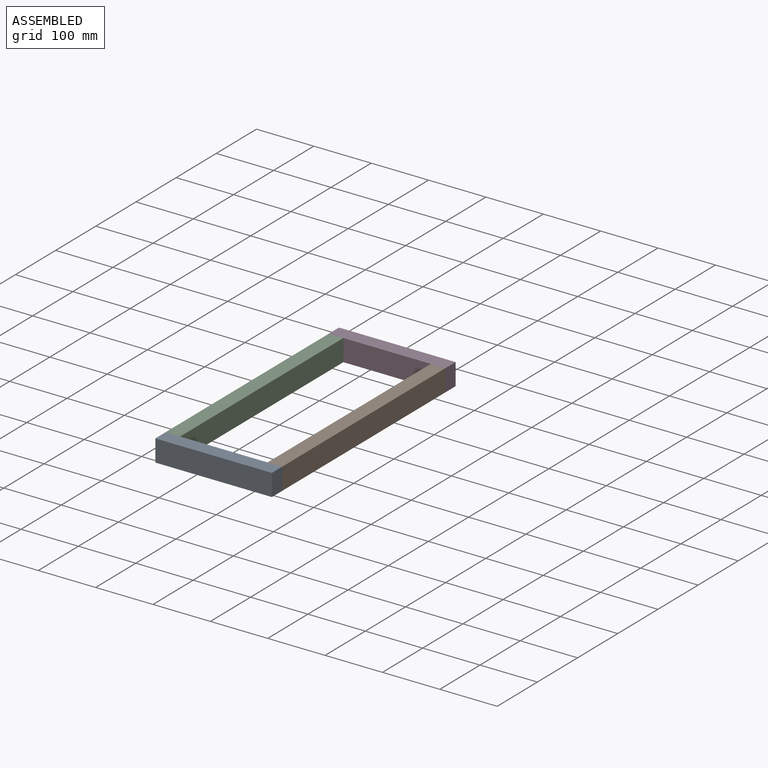
[diagram: assembled view]
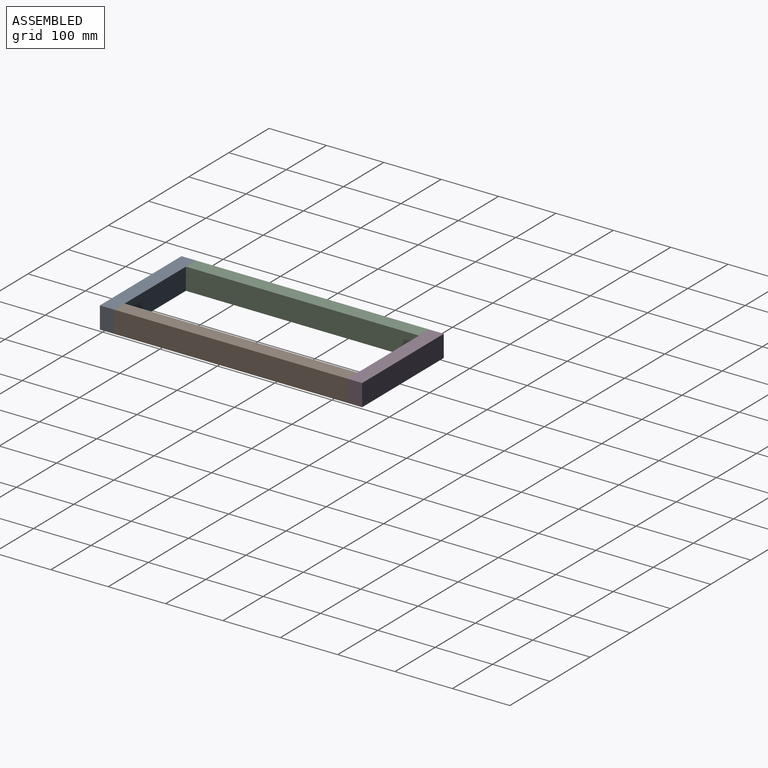
[diagram: assembled view, second angle]
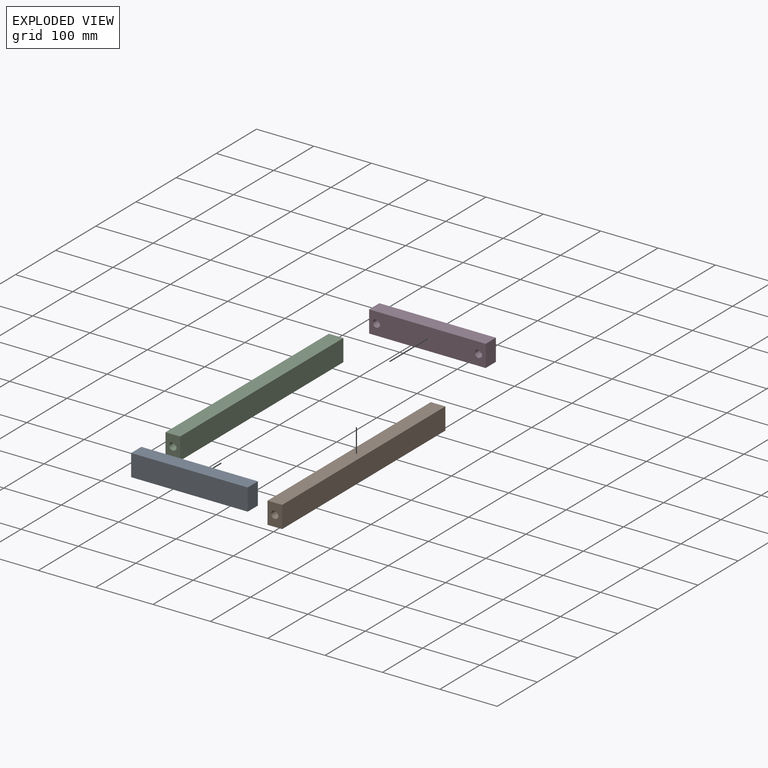
[diagram: exploded view]
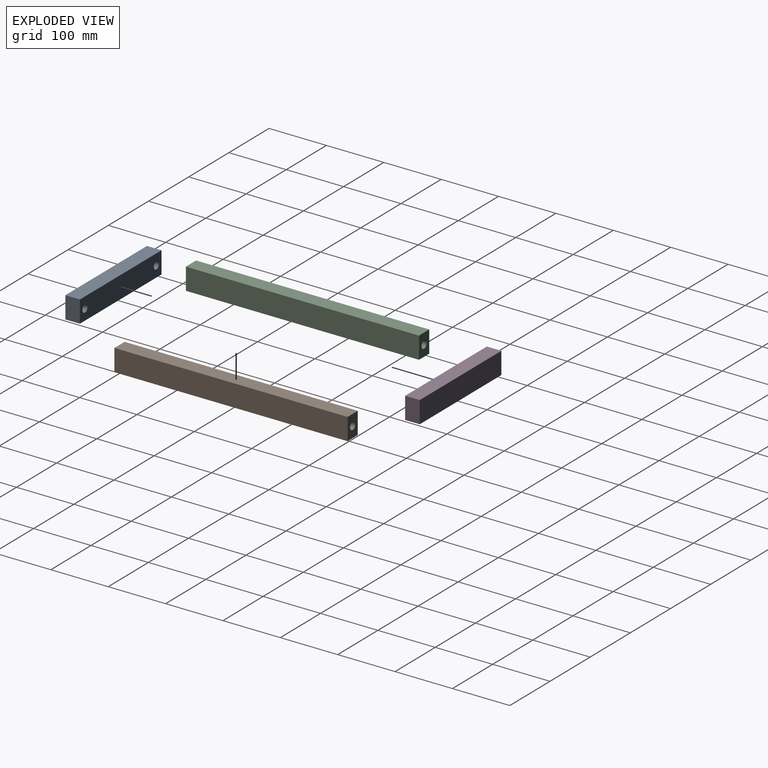
[diagram: exploded view, second angle]
ASSEMBLY  parts=4 mates=3
PART A: 10 faces, bbox 203.2x25.4x38.1 mm
  f0: plane 38.1x25.4mm, normal (-1,0,0), area 967.7mm2, adj f1,f3,f4,f5
  f1: plane 203.2x25.4mm, normal (0,0,-1), area 5161.3mm2, adj f0,f2,f4,f5
  f2: plane 38.1x25.4mm, normal (1,0,0), area 967.7mm2, adj f1,f3,f4,f5
  f3: plane 203.2x25.4mm, normal (0,0,1), area 5161.3mm2, adj f0,f2,f4,f5
  f4: plane 203.2x38.1mm, normal (0,-1,0), area 7488.6mm2, adj f0,f1,f2,f3,f6,f8
  f5: plane 203.2x38.1mm, normal (0,1,0), area 7741.9mm2, adj f0,f1,f2,f3
  f6: cylinder r=6.35mm len=12.7mm, axis (0,-1,0), area 506.7mm2, adj f4,f7
  f7: plane 12.7x12.7mm, normal (0,-1,0), area 126.7mm2, adj f6
  f8: cylinder r=6.35mm len=12.7mm, axis (0,-1,0), area 506.7mm2, adj f4,f9
  f9: plane 12.7x12.7mm, normal (0,-1,0), area 126.7mm2, adj f8
PART B: 10 faces, bbox 406.4x25.4x38.1 mm
  f0: plane 38.1x25.4mm, normal (-1,0,0), area 841.1mm2, adj f1,f3,f4,f5,f6
  f1: plane 406.4x25.4mm, normal (0,0,-1), area 10322.6mm2, adj f0,f2,f4,f5
  f2: plane 38.1x25.4mm, normal (1,0,0), area 841.1mm2, adj f1,f3,f4,f5,f8
  f3: plane 406.4x25.4mm, normal (0,0,1), area 10322.6mm2, adj f0,f2,f4,f5
  f4: plane 406.4x38.1mm, normal (0,-1,0), area 15483.8mm2, adj f0,f1,f2,f3
  f5: plane 406.4x38.1mm, normal (0,1,0), area 15483.8mm2, adj f0,f1,f2,f3
  f6: cylinder r=6.35mm len=12.7mm, axis (-1,0,0), area 506.7mm2, adj f0,f7
  f7: plane 12.7x12.7mm, normal (-1,0,0), area 126.7mm2, adj f6
  f8: cylinder r=6.35mm len=12.7mm, axis (1,0,0), area 506.7mm2, adj f2,f9
  f9: plane 12.7x12.7mm, normal (1,0,0), area 126.7mm2, adj f8
PART C: same geometry as B
PART D: same geometry as A
PLACE A rot(axis=(0,0,1),180deg) t=(12.82,-424.55,20.08)mm
PLACE B rot(axis=(0.71,0.71,0),180deg) t=(114.42,-195.95,20.08)mm
PLACE C rot(axis=(0.71,0.71,0),180deg) t=(-63.38,-195.95,20.08)mm
PLACE D t=(12.82,32.65,20.08)mm
MATE fastened B.f8 <-> D.f6  axis (0,1,0) through (101.72,7.25,20.08)mm
MATE fastened C.f8 <-> D.f8  axis (0,1,0) through (-76.08,7.25,20.08)mm
MATE fastened A.f6 <-> C.f6  axis (0,1,0) through (-76.08,-399.15,20.08)mm
